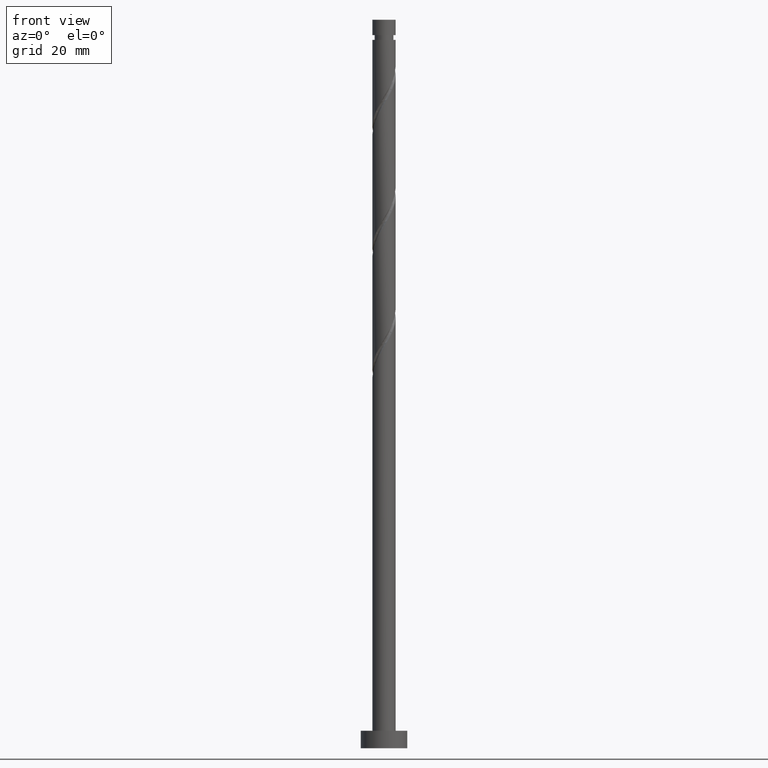
[diagram: clean part render]
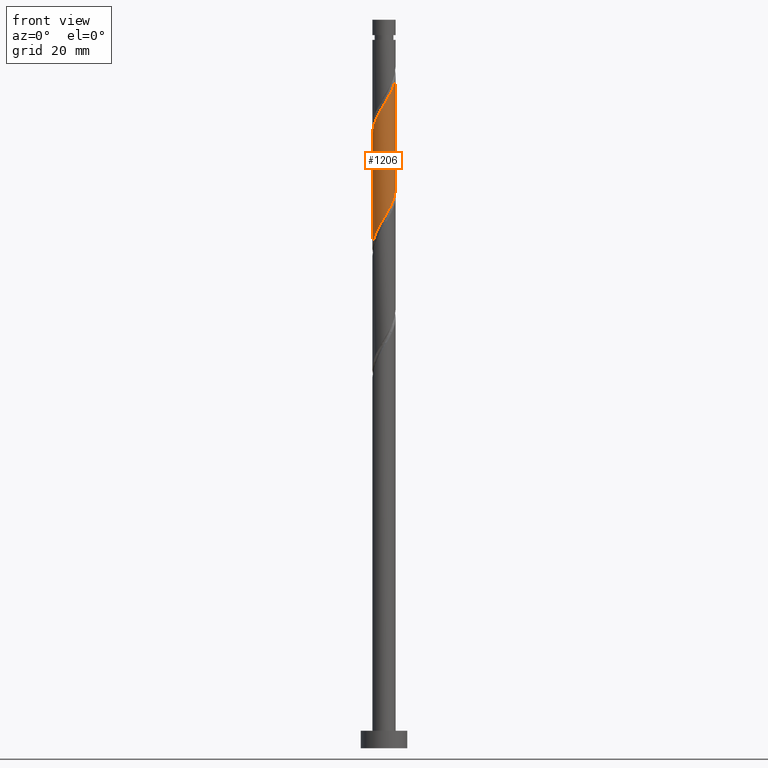
[diagram: same view with one face highlighted and labeled with its STEP entity id]
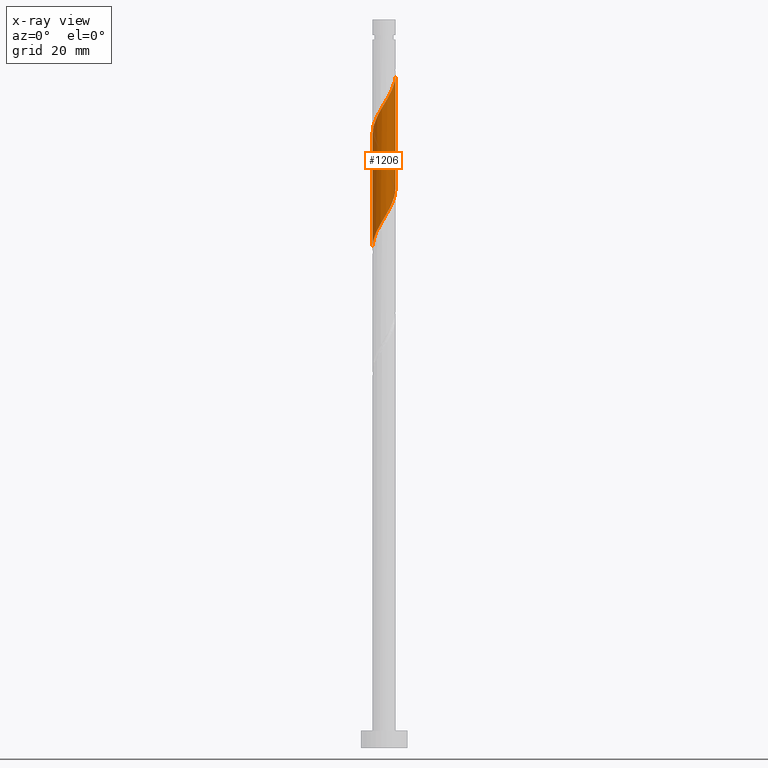
[diagram: x-ray of the same camera — body ghosted, the highlighted face saturated]
A machine part, front view. The second image highlights one B-rep face of the part: STEP entity #1206.
The next image is the same camera in x-ray: the body ghosted, the highlighted face saturated — about 0% of this face is hidden behind the body in this view.
In plain terms, the highlighted cylindrical surface (edge-blend (fillet) strip) has radius 2 mm, axis along (-0, -0, -1).
Its self-contained STEP definition (entity closure, byte-faithful):
#8 = CARTESIAN_POINT ( 'NONE',  ( -1.987057982840708892, -0.2271575946980704253, 86.13861812074759428 ) ) ;
#15 = CARTESIAN_POINT ( 'NONE',  ( -0.2271575946980713689, -1.987057982840711556, 110.0969514540808945 ) ) ;
#23 = CARTESIAN_POINT ( 'NONE',  ( -2.000000000000003109, -0.2010075630518436129, 105.5997869213518641 ) ) ;
#32 = CARTESIAN_POINT ( 'NONE',  ( -0.9841890232517231940, -1.741083561036292915, 89.26361812074760849 ) ) ;
#40 = CARTESIAN_POINT ( 'NONE',  ( -1.688138017008851355, -1.118272131136731851, 87.70111812074759428 ) ) ;
#51 = LINE ( 'NONE', #167, #55 ) ;
#55 = VECTOR ( 'NONE', #843, 1000.000000000000000 ) ;
#70 = FACE_OUTER_BOUND ( 'NONE', #356, .T. ) ;
#95 = CARTESIAN_POINT ( 'NONE',  ( -1.999999999999999556, -3.043599864990775474E-15, 85.76175389555119466 ) ) ;
#134 = CARTESIAN_POINT ( 'NONE',  ( -1.118272131136734071, -1.688138017008854463, 108.5344514540809371 ) ) ;
#142 = CARTESIAN_POINT ( 'NONE',  ( -1.474043792816779330, -1.351737732275873904, 88.22195145408093708 ) ) ;
#167 = CARTESIAN_POINT ( 'NONE',  ( 2.000000000000000000, 2.449293598294705921E-16, 125.0000000000000000 ) ) ;
#170 = CARTESIAN_POINT ( 'NONE',  ( 2.000000000000002665, 6.896827280274611938E-16, 115.6821490126106511 ) ) ;
#193 = CARTESIAN_POINT ( 'NONE',  ( 1.999999999999999556, 2.803710220459482995E-15, 96.17842056221785185 ) ) ;
#197 = EDGE_CURVE ( 'NONE', #1196, #486, #925, .T. ) ;
#241 = EDGE_CURVE ( 'NONE', #842, #1449, #444, .T. ) ;
#259 = CARTESIAN_POINT ( 'NONE',  ( 1.351737732275873904, -1.474043792816779330, 93.43028478741425147 ) ) ;
#274 = CARTESIAN_POINT ( 'NONE',  ( 1.999999999999999556, -0.2010075630518441125, 95.84411598680999589 ) ) ;
#356 = EDGE_LOOP ( 'NONE', ( #477, #362, #822, #973 ) ) ;
#362 = ORIENTED_EDGE ( 'NONE', *, *, #241, .F. ) ;
#373 = CARTESIAN_POINT ( 'NONE',  ( -0.7084284778787396375, -1.896963788657568761, 89.78445145408093708 ) ) ;
#383 = CARTESIAN_POINT ( 'NONE',  ( 0.5418766612026979512, -1.951079754338987060, 91.86778478741423726 ) ) ;
#397 = CARTESIAN_POINT ( 'NONE',  ( 0.2271575946980702587, -1.987057982840708892, 91.34695145408092287 ) ) ;
#410 = CARTESIAN_POINT ( 'NONE',  ( 2.000000000000002665, 6.896827280274611938E-16, 115.6821490126106511 ) ) ;
#444 =( BOUNDED_CURVE ( )  B_SPLINE_CURVE ( 2, ( #1351, #23, #512, #756, #839, #718, #1215, #134, #611, #1094, #15, #618, #495, #1101, #977, #848, #1268, #905, #785, #895, #656, #1505, #170 ),
 .UNSPECIFIED., .F., .T. ) 
 B_SPLINE_CURVE_WITH_KNOTS ( ( 3, 2, 2, 2, 2, 2, 2, 2, 2, 2, 2, 3 ),
 ( 0.5545322023138552492, 0.5625000000000000000, 0.5749999999999999556, 0.5875000000000000222, 0.5999999999999999778, 0.6125000000000000444, 0.6250000000000000000, 0.6374999999999999556, 0.6500000000000000222, 0.6624999999999999778, 0.6750000000000000444, 0.6795322023138552492 ),
 .UNSPECIFIED. ) 
 CURVE ( )  GEOMETRIC_REPRESENTATION_ITEM ( )  RATIONAL_B_SPLINE_CURVE ( ( 0.9039174447099427301, 0.9019565955404720281, 0.9090909090909204959, 0.8978984914501364489, 0.9090909090909204959, 0.8978984914501364489, 0.9090909090909204959, 0.8978984914501364489, 0.9090909090909204959, 0.8978984914501364489, 0.9090909090909204959, 0.8978984914501364489, 0.9090909090909204959, 0.8978984914501364489, 0.9090909090909204959, 0.8978984914501364489, 0.9090909090909204959, 0.8978984914501364489, 0.9090909090909204959, 0.8978984914501364489, 0.9090909090909204959, 0.9050328050005848057, 0.9039174447099427301 ) ) 
 REPRESENTATION_ITEM ( '' )  );
#477 = ORIENTED_EDGE ( 'NONE', *, *, #1513, .F. ) ;
#486 = VERTEX_POINT ( 'NONE', #95 ) ;
#495 = CARTESIAN_POINT ( 'NONE',  ( 0.3979949748426481748, -1.960000000000002629, 111.1386181207475659 ) ) ;
#512 = CARTESIAN_POINT ( 'NONE',  ( -1.960000000000002629, -0.3979949748426483414, 105.9302847874142515 ) ) ;
#531 = DIRECTION ( 'NONE',  ( -1.000000000000000000, 0.000000000000000000, 0.000000000000000000 ) ) ;
#602 = CARTESIAN_POINT ( 'NONE',  ( -0.3979949748426485079, -1.959999999999999520, 90.30528478741425147 ) ) ;
#611 = CARTESIAN_POINT ( 'NONE',  ( -0.8300743961697168993, -1.819608885673921428, 109.0552847874142657 ) ) ;
#618 = CARTESIAN_POINT ( 'NONE',  ( 0.08756147180655660112, -2.023036211342433166, 110.6177847874142373 ) ) ;
#624 = CARTESIAN_POINT ( 'NONE',  ( 1.999999999999999556, 2.803710220459482995E-15, 96.17842056221785185 ) ) ;
#630 = CARTESIAN_POINT ( 'NONE',  ( -1.819608885673919207, -0.8300743961697149009, 87.18028478741426568 ) ) ;
#656 = CARTESIAN_POINT ( 'NONE',  ( 1.987057982840711556, -0.2271575946980715077, 115.3052847874142373 ) ) ;
#718 = CARTESIAN_POINT ( 'NONE',  ( -1.585203333415019511, -1.259949568624708416, 107.4927847874142515 ) ) ;
#732 = CARTESIAN_POINT ( 'NONE',  ( 1.959999999999999520, -0.3979949748426485634, 95.51361812074759428 ) ) ;
#739 = CARTESIAN_POINT ( 'NONE',  ( 1.118272131136731851, -1.688138017008851577, 92.90945145408092287 ) ) ;
#746 = CARTESIAN_POINT ( 'NONE',  ( 1.585203333415016624, -1.259949568624707306, 93.95111812074760849 ) ) ;
#751 = AXIS2_PLACEMENT_3D ( 'NONE', #1256, #1034, #531 ) ;
#756 = CARTESIAN_POINT ( 'NONE',  ( -1.896963788657572314, -0.7084284778787400816, 106.4511181207475801 ) ) ;
#768 = DIRECTION ( 'NONE',  ( -0.000000000000000000, -0.000000000000000000, -1.000000000000000000 ) ) ;
#783 = CARTESIAN_POINT ( 'NONE',  ( -2.000000000000002665, 1.829158539551092187E-15, 105.2654823459439939 ) ) ;
#785 = CARTESIAN_POINT ( 'NONE',  ( 1.819608885673921428, -0.8300743961697168993, 114.2636181207475659 ) ) ;
#822 = ORIENTED_EDGE ( 'NONE', *, *, #1385, .T. ) ;
#839 = CARTESIAN_POINT ( 'NONE',  ( -1.741083561036295801, -0.9841890232517237491, 106.9719514540809087 ) ) ;
#842 = VERTEX_POINT ( 'NONE', #783 ) ;
#843 = DIRECTION ( 'NONE',  ( -0.000000000000000000, -0.000000000000000000, -1.000000000000000000 ) ) ;
#848 = CARTESIAN_POINT ( 'NONE',  ( 1.259949568624708416, -1.585203333415019511, 112.7011181207475943 ) ) ;
#872 = CARTESIAN_POINT ( 'NONE',  ( -1.999999999999999556, -3.043599864990775474E-15, 85.76175389555119466 ) ) ;
#877 = VECTOR ( 'NONE', #768, 1000.000000000000000 ) ;
#881 = LINE ( 'NONE', #1374, #877 ) ;
#895 = CARTESIAN_POINT ( 'NONE',  ( 1.951079754338989947, -0.5418766612026996166, 114.7844514540809229 ) ) ;
#905 = CARTESIAN_POINT ( 'NONE',  ( 1.688138017008854463, -1.118272131136734293, 113.7427847874142515 ) ) ;
#925 =( BOUNDED_CURVE ( )  B_SPLINE_CURVE ( 2, ( #624, #274, #732, #1236, #1466, #746, #259, #739, #994, #383, #397, #1243, #602, #373, #32, #1230, #142, #40, #630, #985, #8, #1474, #872 ),
 .UNSPECIFIED., .F., .T. ) 
 B_SPLINE_CURVE_WITH_KNOTS ( ( 3, 2, 2, 2, 2, 2, 2, 2, 2, 2, 2, 3 ),
 ( 0.5545322023138552492, 0.5625000000000000000, 0.5749999999999999556, 0.5875000000000000222, 0.5999999999999999778, 0.6125000000000000444, 0.6250000000000000000, 0.6374999999999999556, 0.6500000000000000222, 0.6624999999999999778, 0.6750000000000000444, 0.6795322023138551382 ),
 .UNSPECIFIED. ) 
 CURVE ( )  GEOMETRIC_REPRESENTATION_ITEM ( )  RATIONAL_B_SPLINE_CURVE ( ( 0.9039174447099358467, 0.9019565955404652557, 0.9090909090909136125, 0.8978984914501296766, 0.9090909090909136125, 0.8978984914501296766, 0.9090909090909136125, 0.8978984914501296766, 0.9090909090909136125, 0.8978984914501296766, 0.9090909090909136125, 0.8978984914501296766, 0.9090909090909136125, 0.8978984914501296766, 0.9090909090909136125, 0.8978984914501296766, 0.9090909090909136125, 0.8978984914501296766, 0.9090909090909136125, 0.8978984914501296766, 0.9090909090909136125, 0.9050328050005780334, 0.9039174447099358467 ) ) 
 REPRESENTATION_ITEM ( '' )  );
#973 = ORIENTED_EDGE ( 'NONE', *, *, #197, .F. ) ;
#977 = CARTESIAN_POINT ( 'NONE',  ( 0.9841890232517237491, -1.741083561036295801, 112.1802847874142515 ) ) ;
#985 = CARTESIAN_POINT ( 'NONE',  ( -1.951079754338987504, -0.5418766612026980622, 86.65945145408090866 ) ) ;
#994 = CARTESIAN_POINT ( 'NONE',  ( 0.8300743961697149009, -1.819608885673919207, 92.38861812074760849 ) ) ;
#1034 = DIRECTION ( 'NONE',  ( -0.000000000000000000, -0.000000000000000000, -1.000000000000000000 ) ) ;
#1094 = CARTESIAN_POINT ( 'NONE',  ( -0.5418766612026993945, -1.951079754338989947, 109.5761181207475943 ) ) ;
#1101 = CARTESIAN_POINT ( 'NONE',  ( 0.7084284778787399706, -1.896963788657572314, 111.6594514540809655 ) ) ;
#1151 = CYLINDRICAL_SURFACE ( 'NONE', #751, 2.000000000000000000 ) ;
#1196 = VERTEX_POINT ( 'NONE', #193 ) ;
#1206 = ADVANCED_FACE ( 'NONE', ( #70 ), #1151, .T. ) ;
#1215 = CARTESIAN_POINT ( 'NONE',  ( -1.351737732275876569, -1.474043792816781329, 108.0136181207475659 ) ) ;
#1230 = CARTESIAN_POINT ( 'NONE',  ( -1.259949568624707306, -1.585203333415016624, 88.74278478741429410 ) ) ;
#1236 = CARTESIAN_POINT ( 'NONE',  ( 1.896963788657568761, -0.7084284778787396375, 94.99278478741427989 ) ) ;
#1243 = CARTESIAN_POINT ( 'NONE',  ( -0.08756147180655739215, -2.023036211342430946, 90.82611812074759428 ) ) ;
#1256 = CARTESIAN_POINT ( 'NONE',  ( 0.000000000000000000, 0.000000000000000000, 125.0000000000000000 ) ) ;
#1268 = CARTESIAN_POINT ( 'NONE',  ( 1.474043792816781329, -1.351737732275876569, 113.2219514540809229 ) ) ;
#1351 = CARTESIAN_POINT ( 'NONE',  ( -2.000000000000002665, 1.829158539551092187E-15, 105.2654823459440081 ) ) ;
#1374 = CARTESIAN_POINT ( 'NONE',  ( -2.000000000000000000, 0.000000000000000000, 125.0000000000000000 ) ) ;
#1385 = EDGE_CURVE ( 'NONE', #842, #486, #881, .T. ) ;
#1449 = VERTEX_POINT ( 'NONE', #410 ) ;
#1466 = CARTESIAN_POINT ( 'NONE',  ( 1.741083561036292915, -0.9841890232517231940, 94.47195145408090866 ) ) ;
#1474 = CARTESIAN_POINT ( 'NONE',  ( -1.999999999999999556, -0.1139474748928670511, 85.95126498475846688 ) ) ;
#1505 = CARTESIAN_POINT ( 'NONE',  ( 2.000000000000002665, -0.1139474748928652470, 115.4926379234033789 ) ) ;
#1513 = EDGE_CURVE ( 'NONE', #1449, #1196, #51, .T. ) ;